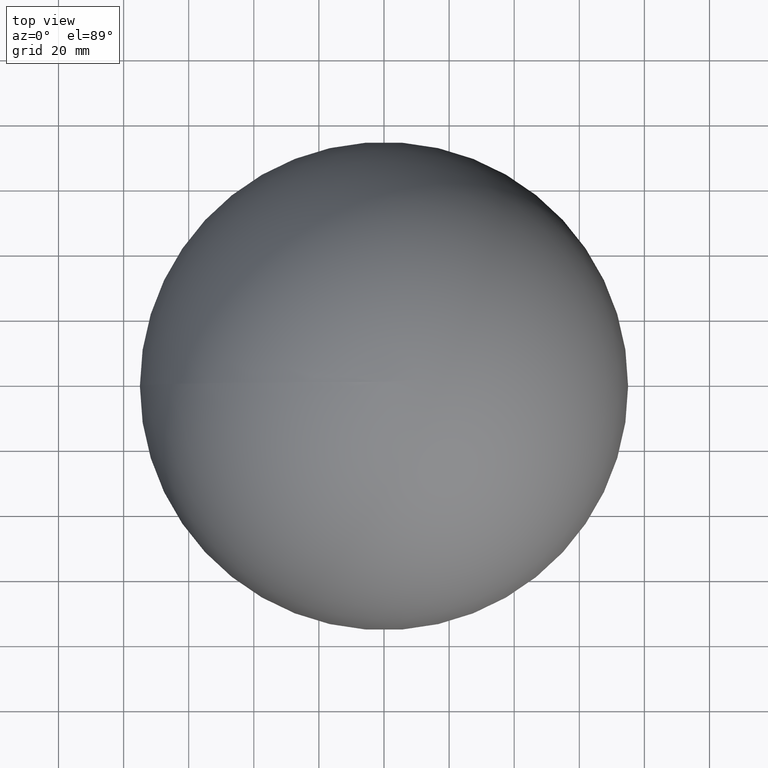
[diagram: clean part render]
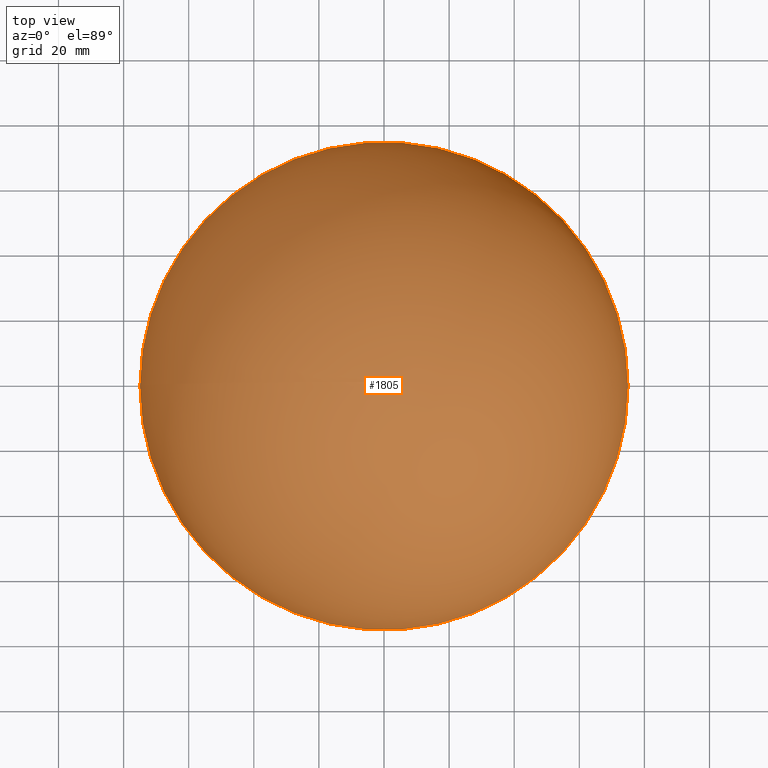
[diagram: same view with one face highlighted and labeled with its STEP entity id]
A machine part, top view. The second image highlights one B-rep face of the part: STEP entity #1805.
In plain terms, the highlighted spherical surface has radius 75 mm.
Its self-contained STEP definition (entity closure, byte-faithful):
#1328 = AXIS2_PLACEMENT_3D ( 'NONE', #4155, #2480, #6535 ) ;
#1805 = ADVANCED_FACE ( 'NONE', ( #6695 ), #7992, .T. ) ;
#2074 = AXIS2_PLACEMENT_3D ( 'NONE', #8561, #4498, #4443 ) ;
#2258 = CIRCLE ( 'NONE', #1328, 75.00000000000000000 ) ;
#2480 = DIRECTION ( 'NONE',  ( 6.982962677686266711E-15, 0.000000000000000000, -1.000000000000000000 ) ) ;
#3387 = VERTEX_POINT ( 'NONE', #8740 ) ;
#3500 = VERTEX_POINT ( 'NONE', #6549 ) ;
#4155 = CARTESIAN_POINT ( 'NONE',  ( 0.000000000000000000, 0.000000000000000000, 0.000000000000000000 ) ) ;
#4443 = DIRECTION ( 'NONE',  ( -1.000000000000000000, 0.000000000000000000, -6.982962677686266711E-15 ) ) ;
#4498 = DIRECTION ( 'NONE',  ( 6.982962677686266711E-15, 0.000000000000000000, -1.000000000000000000 ) ) ;
#5471 = EDGE_CURVE ( 'NONE', #3387, #3500, #2258, .T. ) ;
#6317 = DIRECTION ( 'NONE',  ( -1.000000000000000000, 0.000000000000000000, -6.982962677686266711E-15 ) ) ;
#6376 = CARTESIAN_POINT ( 'NONE',  ( 0.000000000000000000, 0.000000000000000000, 0.000000000000000000 ) ) ;
#6449 = DIRECTION ( 'NONE',  ( -6.982962677686266711E-15, 0.000000000000000000, 1.000000000000000000 ) ) ;
#6451 = EDGE_CURVE ( 'NONE', #3500, #3387, #9333, .T. ) ;
#6535 = DIRECTION ( 'NONE',  ( -1.000000000000000000, 0.000000000000000000, -6.982962677686266711E-15 ) ) ;
#6549 = CARTESIAN_POINT ( 'NONE',  ( -75.00000000000000000, 0.000000000000000000, -5.237222008264700285E-13 ) ) ;
#6695 = FACE_OUTER_BOUND ( 'NONE', #9715, .T. ) ;
#6816 = ORIENTED_EDGE ( 'NONE', *, *, #6451, .F. ) ;
#7697 = ORIENTED_EDGE ( 'NONE', *, *, #5471, .F. ) ;
#7992 = SPHERICAL_SURFACE ( 'NONE', #8862, 75.00000000000000000 ) ;
#8561 = CARTESIAN_POINT ( 'NONE',  ( 0.000000000000000000, 0.000000000000000000, 0.000000000000000000 ) ) ;
#8740 = CARTESIAN_POINT ( 'NONE',  ( 75.00000000000000000, 9.184850993605148733E-15, 5.237222008264700285E-13 ) ) ;
#8862 = AXIS2_PLACEMENT_3D ( 'NONE', #6376, #6449, #6317 ) ;
#9333 = CIRCLE ( 'NONE', #2074, 75.00000000000000000 ) ;
#9715 = EDGE_LOOP ( 'NONE', ( #6816, #7697 ) ) ;